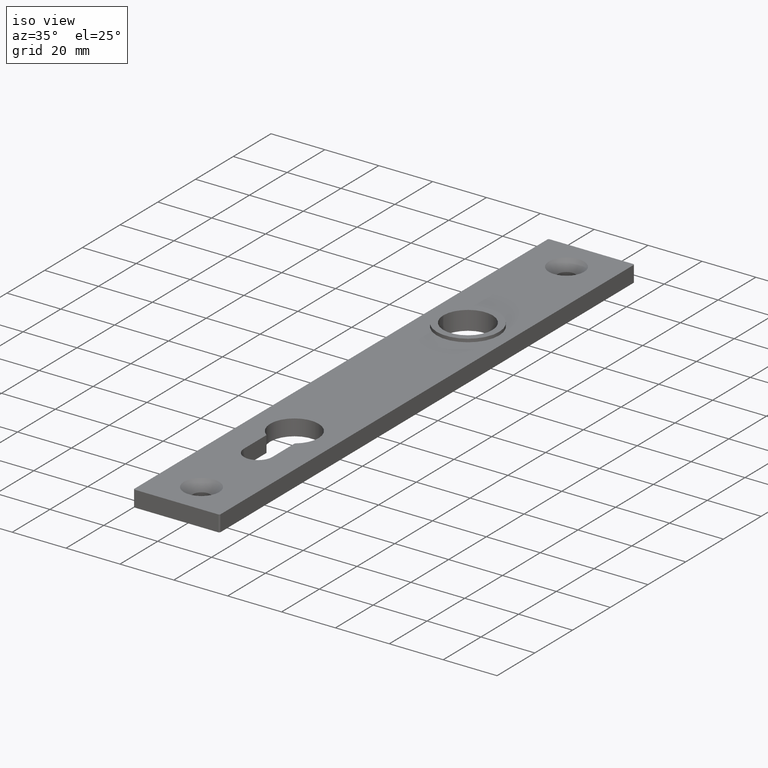
[diagram: clean part render]
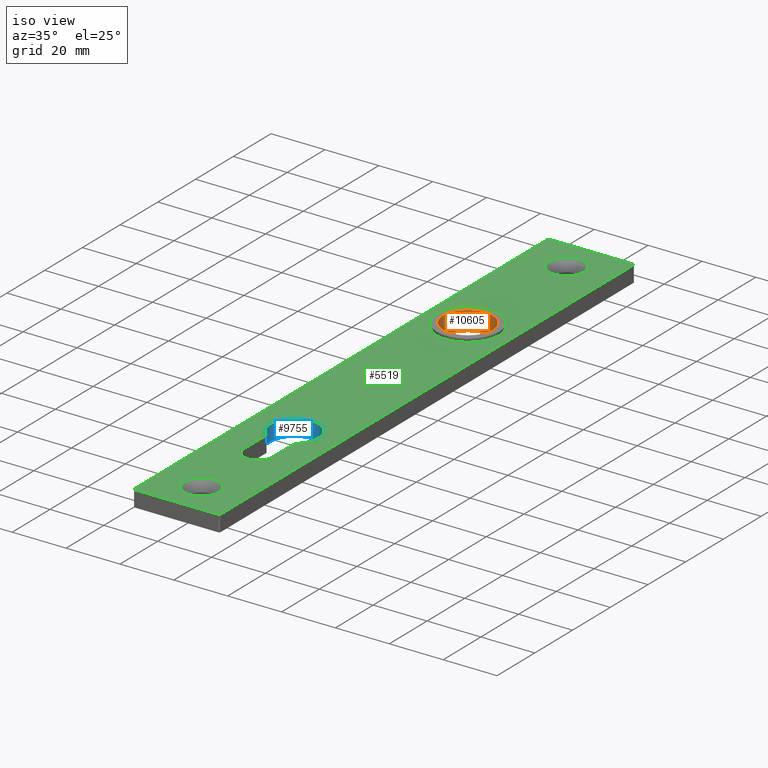
[diagram: same view with three faces highlighted in distinct colors, each labeled with its STEP entity id]
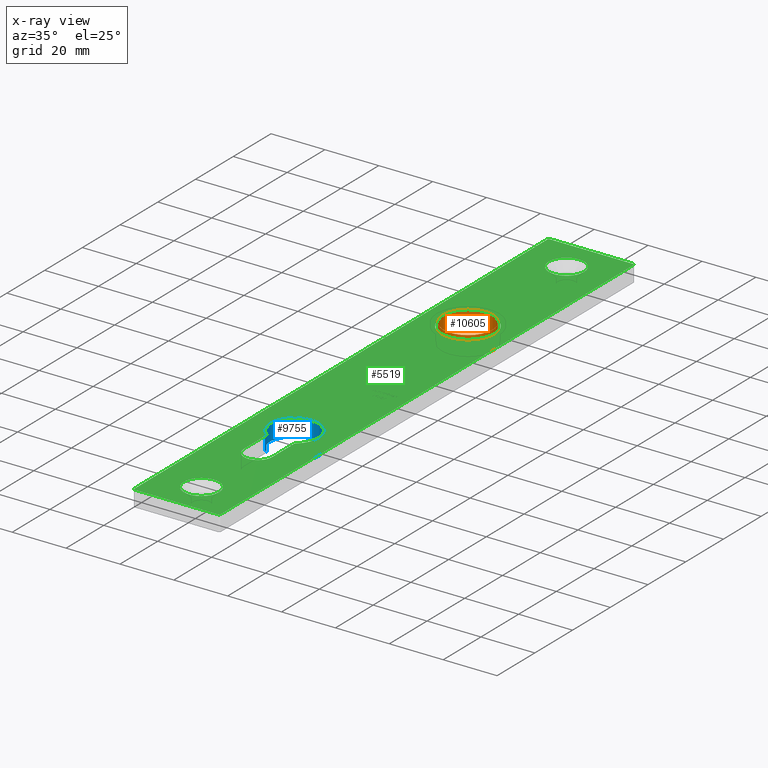
[diagram: x-ray of the same camera — body ghosted, the three highlighted faces saturated]
A machine part, iso view with three faces highlighted in distinct colors.
The next image is the same camera in x-ray (body ghosted, the three faces saturated) — at least one of them is partly hidden behind the body in this view.
Their STEP definitions:

[orange] entity #10605 — the highlighted cylindrical surface (bore or boss wall) has radius 9.15 mm, axis along (-0, -0, -1).
#867 = CARTESIAN_POINT ( 'NONE',  ( 0.0000000000000000000, 0.0000000000000000000, 0.0000000000000000000 ) ) ;
#1224 = EDGE_CURVE ( 'NONE', #5643, #5643, #4533, .T. ) ;
#1470 = EDGE_LOOP ( 'NONE', ( #2022 ) ) ;
#1795 = AXIS2_PLACEMENT_3D ( 'NONE', #5286, #5218, #8835 ) ;
#2022 = ORIENTED_EDGE ( 'NONE', *, *, #1224, .T. ) ;
#2783 = DIRECTION ( 'NONE',  ( -0.0000000000000000000, -0.0000000000000000000, -1.000000000000000000 ) ) ;
#2976 = CARTESIAN_POINT ( 'NONE',  ( -9.150000000000000400, 0.0000000000000000000, 7.000000000000000000 ) ) ;
#3444 = CYLINDRICAL_SURFACE ( 'NONE', #5332, 9.150000000000000400 ) ;
#3684 = DIRECTION ( 'NONE',  ( -1.000000000000000000, 0.0000000000000000000, 0.0000000000000000000 ) ) ;
#3953 = CIRCLE ( 'NONE', #11231, 9.150000000000000400 ) ;
#4533 = CIRCLE ( 'NONE', #1795, 9.150000000000000400 ) ;
#4579 = DIRECTION ( 'NONE',  ( -1.000000000000000000, 0.0000000000000000000, 0.0000000000000000000 ) ) ;
#4677 = CARTESIAN_POINT ( 'NONE',  ( -9.150000000000000400, 0.0000000000000000000, -7.347880794884117800E-017 ) ) ;
#5139 = EDGE_LOOP ( 'NONE', ( #11590 ) ) ;
#5218 = DIRECTION ( 'NONE',  ( -0.0000000000000000000, -0.0000000000000000000, -1.000000000000000000 ) ) ;
#5286 = CARTESIAN_POINT ( 'NONE',  ( 0.0000000000000000000, 0.0000000000000000000, -7.347880794884117800E-017 ) ) ;
#5332 = AXIS2_PLACEMENT_3D ( 'NONE', #867, #5527, #4579 ) ;
#5355 = EDGE_CURVE ( 'NONE', #8887, #8887, #3953, .T. ) ;
#5527 = DIRECTION ( 'NONE',  ( -0.0000000000000000000, -0.0000000000000000000, -1.000000000000000000 ) ) ;
#5643 = VERTEX_POINT ( 'NONE', #4677 ) ;
#8153 = CARTESIAN_POINT ( 'NONE',  ( 0.0000000000000000000, 0.0000000000000000000, 7.000000000000000000 ) ) ;
#8835 = DIRECTION ( 'NONE',  ( -1.000000000000000000, 0.0000000000000000000, 0.0000000000000000000 ) ) ;
#8887 = VERTEX_POINT ( 'NONE', #2976 ) ;
#9610 = FACE_OUTER_BOUND ( 'NONE', #5139, .T. ) ;
#10605 = ADVANCED_FACE ( 'NONE', ( #11500, #9610 ), #3444, .F. ) ;
#11231 = AXIS2_PLACEMENT_3D ( 'NONE', #8153, #2783, #3684 ) ;
#11500 = FACE_OUTER_BOUND ( 'NONE', #1470, .T. ) ;
#11590 = ORIENTED_EDGE ( 'NONE', *, *, #5355, .F. ) ;

[blue] entity #9755 — the highlighted cylindrical surface (edge-blend (fillet) strip) has radius 9 mm, axis along (-0, -0, -1).
#249 = DIRECTION ( 'NONE',  ( -0.0000000000000000000, -0.0000000000000000000, -1.000000000000000000 ) ) ;
#280 = VERTEX_POINT ( 'NONE', #6853 ) ;
#417 = DIRECTION ( 'NONE',  ( -1.000000000000000000, 0.0000000000000000000, 0.0000000000000000000 ) ) ;
#749 = AXIS2_PLACEMENT_3D ( 'NONE', #10041, #2877, #7421 ) ;
#1140 = LINE ( 'NONE', #5275, #2289 ) ;
#1303 = EDGE_CURVE ( 'NONE', #280, #3575, #6517, .T. ) ;
#1318 = CARTESIAN_POINT ( 'NONE',  ( 0.0000000000000000000, -47.50000000000001400, 0.0000000000000000000 ) ) ;
#1473 = VERTEX_POINT ( 'NONE', #11115 ) ;
#1547 = ORIENTED_EDGE ( 'NONE', *, *, #4351, .T. ) ;
#1942 = EDGE_LOOP ( 'NONE', ( #3966, #10872, #10604, #1547 ) ) ;
#2289 = VECTOR ( 'NONE', #3427, 1000.000000000000000 ) ;
#2580 = AXIS2_PLACEMENT_3D ( 'NONE', #5559, #249, #417 ) ;
#2877 = DIRECTION ( 'NONE',  ( 0.0000000000000000000, 0.0000000000000000000, 1.000000000000000000 ) ) ;
#3427 = DIRECTION ( 'NONE',  ( -0.0000000000000000000, -0.0000000000000000000, -1.000000000000000000 ) ) ;
#3575 = VERTEX_POINT ( 'NONE', #8942 ) ;
#3739 = LINE ( 'NONE', #10066, #9498 ) ;
#3936 = DIRECTION ( 'NONE',  ( 0.0000000000000000000, 0.0000000000000000000, 1.000000000000000000 ) ) ;
#3966 = ORIENTED_EDGE ( 'NONE', *, *, #9805, .F. ) ;
#4351 = EDGE_CURVE ( 'NONE', #3575, #1473, #3739, .T. ) ;
#5275 = CARTESIAN_POINT ( 'NONE',  ( 5.250000000000000000, -54.81009575860673500, 6.000000000000000000 ) ) ;
#5559 = CARTESIAN_POINT ( 'NONE',  ( 0.0000000000000000000, -47.50000000000001400, 6.000000000000000000 ) ) ;
#6517 = CIRCLE ( 'NONE', #749, 9.000000000000000000 ) ;
#6853 = CARTESIAN_POINT ( 'NONE',  ( 5.250000000000000000, -54.81009575860673500, 6.000000000000000000 ) ) ;
#7421 = DIRECTION ( 'NONE',  ( 1.000000000000000000, 0.0000000000000000000, 0.0000000000000000000 ) ) ;
#8203 = AXIS2_PLACEMENT_3D ( 'NONE', #1318, #3936, #10235 ) ;
#8749 = CYLINDRICAL_SURFACE ( 'NONE', #2580, 9.000000000000000000 ) ;
#8942 = CARTESIAN_POINT ( 'NONE',  ( -5.250000000000000900, -54.81009575860673500, 6.000000000000000000 ) ) ;
#9498 = VECTOR ( 'NONE', #11070, 1000.000000000000000 ) ;
#9726 = CIRCLE ( 'NONE', #8203, 9.000000000000000000 ) ;
#9755 = ADVANCED_FACE ( 'NONE', ( #11742 ), #8749, .F. ) ;
#9805 = EDGE_CURVE ( 'NONE', #11578, #1473, #9726, .T. ) ;
#10041 = CARTESIAN_POINT ( 'NONE',  ( 0.0000000000000000000, -47.50000000000001400, 6.000000000000000000 ) ) ;
#10066 = CARTESIAN_POINT ( 'NONE',  ( -5.250000000000000900, -54.81009575860673500, 6.000000000000000000 ) ) ;
#10235 = DIRECTION ( 'NONE',  ( 1.000000000000000000, 0.0000000000000000000, 0.0000000000000000000 ) ) ;
#10604 = ORIENTED_EDGE ( 'NONE', *, *, #1303, .T. ) ;
#10616 = CARTESIAN_POINT ( 'NONE',  ( 5.250000000000000000, -54.81009575860673500, 0.0000000000000000000 ) ) ;
#10872 = ORIENTED_EDGE ( 'NONE', *, *, #11551, .F. ) ;
#11070 = DIRECTION ( 'NONE',  ( -0.0000000000000000000, -0.0000000000000000000, -1.000000000000000000 ) ) ;
#11115 = CARTESIAN_POINT ( 'NONE',  ( -5.250000000000000900, -54.81009575860673500, 0.0000000000000000000 ) ) ;
#11551 = EDGE_CURVE ( 'NONE', #280, #11578, #1140, .T. ) ;
#11578 = VERTEX_POINT ( 'NONE', #10616 ) ;
#11742 = FACE_OUTER_BOUND ( 'NONE', #1942, .T. ) ;

[green] entity #5519 — the highlighted planar face has unit normal (0, 0, 1).
#89 = EDGE_LOOP ( 'NONE', ( #10840 ) ) ;
#251 = FACE_BOUND ( 'NONE', #6023, .T. ) ;
#280 = VERTEX_POINT ( 'NONE', #6853 ) ;
#355 = VERTEX_POINT ( 'NONE', #7007 ) ;
#453 = CARTESIAN_POINT ( 'NONE',  ( 15.49999999999999300, 109.4999999999999700, 6.000000000000000000 ) ) ;
#749 = AXIS2_PLACEMENT_3D ( 'NONE', #10041, #2877, #7421 ) ;
#750 = DIRECTION ( 'NONE',  ( -0.0000000000000000000, 0.0000000000000000000, 1.000000000000000000 ) ) ;
#757 = DIRECTION ( 'NONE',  ( -9.462128050782584400E-017, 1.000000000000000000, -0.0000000000000000000 ) ) ;
#786 = CARTESIAN_POINT ( 'NONE',  ( -15.50000000000000700, 109.4999999999999900, 6.000000000000000000 ) ) ;
#871 = DIRECTION ( 'NONE',  ( 1.000000000000000000, 0.0000000000000000000, 0.0000000000000000000 ) ) ;
#1105 = EDGE_CURVE ( 'NONE', #3575, #4487, #1861, .T. ) ;
#1186 = VERTEX_POINT ( 'NONE', #6161 ) ;
#1233 = VERTEX_POINT ( 'NONE', #3474 ) ;
#1243 = ORIENTED_EDGE ( 'NONE', *, *, #9173, .T. ) ;
#1260 = AXIS2_PLACEMENT_3D ( 'NONE', #9453, #11351, #5070 ) ;
#1303 = EDGE_CURVE ( 'NONE', #280, #3575, #6517, .T. ) ;
#1348 = DIRECTION ( 'NONE',  ( 0.0000000000000000000, -0.0000000000000000000, -1.000000000000000000 ) ) ;
#1402 = EDGE_LOOP ( 'NONE', ( #10542, #5560, #5057, #5269 ) ) ;
#1427 = EDGE_CURVE ( 'NONE', #1233, #4442, #10012, .T. ) ;
#1533 = VERTEX_POINT ( 'NONE', #3933 ) ;
#1604 = ORIENTED_EDGE ( 'NONE', *, *, #1427, .T. ) ;
#1718 = DIRECTION ( 'NONE',  ( -0.0000000000000000000, 0.0000000000000000000, 1.000000000000000000 ) ) ;
#1804 = FACE_BOUND ( 'NONE', #1402, .T. ) ;
#1850 = EDGE_CURVE ( 'NONE', #7635, #7635, #6924, .T. ) ;
#1861 = LINE ( 'NONE', #11399, #3570 ) ;
#1896 = VECTOR ( 'NONE', #757, 1000.000000000000000 ) ;
#2060 = CARTESIAN_POINT ( 'NONE',  ( -16.00000000000000700, 109.9999999999999900, 6.000000000000000000 ) ) ;
#2133 = CIRCLE ( 'NONE', #1260, 0.5000000000000004400 ) ;
#2327 = CIRCLE ( 'NONE', #3398, 6.550000000000055800 ) ;
#2415 = ORIENTED_EDGE ( 'NONE', *, *, #8629, .T. ) ;
#2425 = ORIENTED_EDGE ( 'NONE', *, *, #9058, .T. ) ;
#2442 = CARTESIAN_POINT ( 'NONE',  ( -15.50000000000000700, 109.9999999999999900, 6.000000000000000000 ) ) ;
#2487 = EDGE_CURVE ( 'NONE', #355, #1186, #8965, .T. ) ;
#2583 = DIRECTION ( 'NONE',  ( 1.000000000000000000, 0.0000000000000000000, 0.0000000000000000000 ) ) ;
#2621 = DIRECTION ( 'NONE',  ( -0.0000000000000000000, 0.0000000000000000000, 1.000000000000000000 ) ) ;
#2658 = CARTESIAN_POINT ( 'NONE',  ( 15.50000000000001400, -109.4999999999999700, 6.000000000000000000 ) ) ;
#2718 = EDGE_CURVE ( 'NONE', #6219, #6219, #9791, .T. ) ;
#2839 = CIRCLE ( 'NONE', #7154, 0.5000000000000004400 ) ;
#2877 = DIRECTION ( 'NONE',  ( 0.0000000000000000000, 0.0000000000000000000, 1.000000000000000000 ) ) ;
#2932 = CARTESIAN_POINT ( 'NONE',  ( 10.00000000000000700, 44.49999999999998600, 6.000000000000000000 ) ) ;
#2986 = CARTESIAN_POINT ( 'NONE',  ( 0.0000000000000000000, 96.74999999999998600, 6.000000000000000000 ) ) ;
#3111 = CARTESIAN_POINT ( 'NONE',  ( -15.99999999999997900, -109.5000000000000100, 6.000000000000000000 ) ) ;
#3112 = DIRECTION ( 'NONE',  ( 1.000000000000000000, 0.0000000000000000000, 0.0000000000000000000 ) ) ;
#3256 = FACE_BOUND ( 'NONE', #89, .T. ) ;
#3296 = DIRECTION ( 'NONE',  ( 0.0000000000000000000, -0.0000000000000000000, -1.000000000000000000 ) ) ;
#3398 = AXIS2_PLACEMENT_3D ( 'NONE', #11502, #3296, #11464 ) ;
#3474 = CARTESIAN_POINT ( 'NONE',  ( -16.00000000000000700, 109.4999999999999900, 6.000000000000000000 ) ) ;
#3570 = VECTOR ( 'NONE', #5960, 1000.000000000000000 ) ;
#3575 = VERTEX_POINT ( 'NONE', #8942 ) ;
#3836 = VERTEX_POINT ( 'NONE', #4715 ) ;
#3933 = CARTESIAN_POINT ( 'NONE',  ( 15.49999999999999300, 109.9999999999999700, 6.000000000000000000 ) ) ;
#4042 = DIRECTION ( 'NONE',  ( -1.000000000000000000, 4.336808689942017700E-016, -0.0000000000000000000 ) ) ;
#4105 = AXIS2_PLACEMENT_3D ( 'NONE', #8051, #1718, #7975 ) ;
#4155 = EDGE_CURVE ( 'NONE', #8932, #6878, #5544, .T. ) ;
#4442 = VERTEX_POINT ( 'NONE', #3111 ) ;
#4487 = VERTEX_POINT ( 'NONE', #9296 ) ;
#4715 = CARTESIAN_POINT ( 'NONE',  ( 6.550000000000055800, -96.75000000000001400, 6.000000000000000000 ) ) ;
#4752 = EDGE_LOOP ( 'NONE', ( #8789, #1243, #10406, #6370, #4845, #2425, #1604, #6322 ) ) ;
#4757 = CIRCLE ( 'NONE', #7121, 0.5000000000000004400 ) ;
#4845 = ORIENTED_EDGE ( 'NONE', *, *, #11253, .T. ) ;
#5057 = ORIENTED_EDGE ( 'NONE', *, *, #1105, .F. ) ;
#5070 = DIRECTION ( 'NONE',  ( 1.000000000000000000, 0.0000000000000000000, 0.0000000000000000000 ) ) ;
#5089 = VECTOR ( 'NONE', #10985, 1000.000000000000000 ) ;
#5129 = CARTESIAN_POINT ( 'NONE',  ( 15.99999999999999300, 109.4999999999999700, 6.000000000000000000 ) ) ;
#5269 = ORIENTED_EDGE ( 'NONE', *, *, #1303, .F. ) ;
#5322 = AXIS2_PLACEMENT_3D ( 'NONE', #2658, #6254, #8991 ) ;
#5362 = PLANE ( 'NONE',  #4105 ) ;
#5366 = VECTOR ( 'NONE', #4042, 1000.000000000000000 ) ;
#5519 = ADVANCED_FACE ( 'NONE', ( #5898, #3256, #1804, #6894, #251 ), #5362, .T. ) ;
#5544 = LINE ( 'NONE', #10841, #1896 ) ;
#5560 = ORIENTED_EDGE ( 'NONE', *, *, #7127, .F. ) ;
#5581 = VECTOR ( 'NONE', #11592, 1000.000000000000000 ) ;
#5621 = CARTESIAN_POINT ( 'NONE',  ( 6.550000000000055800, 96.74999999999998600, 6.000000000000000000 ) ) ;
#5816 = EDGE_CURVE ( 'NONE', #6878, #1533, #4757, .T. ) ;
#5898 = FACE_BOUND ( 'NONE', #6459, .T. ) ;
#5960 = DIRECTION ( 'NONE',  ( -0.0000000000000000000, -1.000000000000000000, -0.0000000000000000000 ) ) ;
#6023 = EDGE_LOOP ( 'NONE', ( #9900 ) ) ;
#6108 = CARTESIAN_POINT ( 'NONE',  ( 5.250000000000000900, -54.81009575860673500, 6.000000000000000000 ) ) ;
#6161 = CARTESIAN_POINT ( 'NONE',  ( 15.50000000000001400, -109.9999999999999900, 6.000000000000000000 ) ) ;
#6219 = VERTEX_POINT ( 'NONE', #5621 ) ;
#6254 = DIRECTION ( 'NONE',  ( -0.0000000000000000000, 0.0000000000000000000, 1.000000000000000000 ) ) ;
#6322 = ORIENTED_EDGE ( 'NONE', *, *, #8926, .T. ) ;
#6324 = DIRECTION ( 'NONE',  ( 1.000000000000000000, 8.673617379884037400E-016, 0.0000000000000000000 ) ) ;
#6370 = ORIENTED_EDGE ( 'NONE', *, *, #5816, .T. ) ;
#6459 = EDGE_LOOP ( 'NONE', ( #2415 ) ) ;
#6517 = CIRCLE ( 'NONE', #749, 9.000000000000000000 ) ;
#6832 = DIRECTION ( 'NONE',  ( 0.0000000000000000000, 0.0000000000000000000, 1.000000000000000000 ) ) ;
#6853 = CARTESIAN_POINT ( 'NONE',  ( 5.250000000000000000, -54.81009575860673500, 6.000000000000000000 ) ) ;
#6864 = AXIS2_PLACEMENT_3D ( 'NONE', #10801, #10181, #8379 ) ;
#6878 = VERTEX_POINT ( 'NONE', #5129 ) ;
#6894 = FACE_OUTER_BOUND ( 'NONE', #4752, .T. ) ;
#6924 = CIRCLE ( 'NONE', #6864, 10.00000000000000700 ) ;
#7007 = CARTESIAN_POINT ( 'NONE',  ( -15.49999999999997900, -110.0000000000000100, 6.000000000000000000 ) ) ;
#7121 = AXIS2_PLACEMENT_3D ( 'NONE', #453, #750, #871 ) ;
#7127 = EDGE_CURVE ( 'NONE', #4487, #8690, #7170, .T. ) ;
#7154 = AXIS2_PLACEMENT_3D ( 'NONE', #786, #2621, #2583 ) ;
#7170 = CIRCLE ( 'NONE', #11343, 5.250000000000000900 ) ;
#7331 = EDGE_CURVE ( 'NONE', #8690, #280, #9542, .T. ) ;
#7421 = DIRECTION ( 'NONE',  ( 1.000000000000000000, 0.0000000000000000000, 0.0000000000000000000 ) ) ;
#7463 = CARTESIAN_POINT ( 'NONE',  ( -16.00000000000000700, 109.9999999999999900, 6.000000000000000000 ) ) ;
#7635 = VERTEX_POINT ( 'NONE', #2932 ) ;
#7855 = VECTOR ( 'NONE', #6324, 1000.000000000000000 ) ;
#7975 = DIRECTION ( 'NONE',  ( 1.000000000000000000, 0.0000000000000000000, 0.0000000000000000000 ) ) ;
#8051 = CARTESIAN_POINT ( 'NONE',  ( 0.0000000000000000000, 0.0000000000000000000, 6.000000000000000000 ) ) ;
#8379 = DIRECTION ( 'NONE',  ( 1.000000000000000000, 0.0000000000000000000, 0.0000000000000000000 ) ) ;
#8515 = AXIS2_PLACEMENT_3D ( 'NONE', #2986, #1348, #3112 ) ;
#8623 = LINE ( 'NONE', #2060, #5366 ) ;
#8629 = EDGE_CURVE ( 'NONE', #3836, #3836, #2327, .T. ) ;
#8661 = CARTESIAN_POINT ( 'NONE',  ( 16.00000000000001400, -109.4999999999999700, 6.000000000000000000 ) ) ;
#8690 = VERTEX_POINT ( 'NONE', #10509 ) ;
#8789 = ORIENTED_EDGE ( 'NONE', *, *, #2487, .T. ) ;
#8926 = EDGE_CURVE ( 'NONE', #4442, #355, #2133, .T. ) ;
#8932 = VERTEX_POINT ( 'NONE', #8661 ) ;
#8942 = CARTESIAN_POINT ( 'NONE',  ( -5.250000000000000900, -54.81009575860673500, 6.000000000000000000 ) ) ;
#8965 = LINE ( 'NONE', #10712, #7855 ) ;
#8991 = DIRECTION ( 'NONE',  ( 1.000000000000000000, 0.0000000000000000000, 0.0000000000000000000 ) ) ;
#9058 = EDGE_CURVE ( 'NONE', #9400, #1233, #2839, .T. ) ;
#9173 = EDGE_CURVE ( 'NONE', #1186, #8932, #9576, .T. ) ;
#9296 = CARTESIAN_POINT ( 'NONE',  ( -5.250000000000000900, -66.75000000000000000, 6.000000000000000000 ) ) ;
#9400 = VERTEX_POINT ( 'NONE', #2442 ) ;
#9453 = CARTESIAN_POINT ( 'NONE',  ( -15.49999999999997900, -109.5000000000000100, 6.000000000000000000 ) ) ;
#9458 = CARTESIAN_POINT ( 'NONE',  ( 0.0000000000000000000, -66.75000000000001400, 6.000000000000000000 ) ) ;
#9542 = LINE ( 'NONE', #6108, #5581 ) ;
#9576 = CIRCLE ( 'NONE', #5322, 0.5000000000000004400 ) ;
#9791 = CIRCLE ( 'NONE', #8515, 6.550000000000055800 ) ;
#9900 = ORIENTED_EDGE ( 'NONE', *, *, #1850, .F. ) ;
#10012 = LINE ( 'NONE', #7463, #5089 ) ;
#10041 = CARTESIAN_POINT ( 'NONE',  ( 0.0000000000000000000, -47.50000000000001400, 6.000000000000000000 ) ) ;
#10181 = DIRECTION ( 'NONE',  ( 0.0000000000000000000, 0.0000000000000000000, 1.000000000000000000 ) ) ;
#10406 = ORIENTED_EDGE ( 'NONE', *, *, #4155, .T. ) ;
#10509 = CARTESIAN_POINT ( 'NONE',  ( 5.250000000000000900, -66.75000000000000000, 6.000000000000000000 ) ) ;
#10542 = ORIENTED_EDGE ( 'NONE', *, *, #7331, .F. ) ;
#10712 = CARTESIAN_POINT ( 'NONE',  ( -15.99999999999997900, -110.0000000000000100, 6.000000000000000000 ) ) ;
#10801 = CARTESIAN_POINT ( 'NONE',  ( 0.0000000000000000000, 44.49999999999998600, 6.000000000000000000 ) ) ;
#10840 = ORIENTED_EDGE ( 'NONE', *, *, #2718, .T. ) ;
#10841 = CARTESIAN_POINT ( 'NONE',  ( 15.99999999999999300, 109.9999999999999700, 6.000000000000000000 ) ) ;
#10985 = DIRECTION ( 'NONE',  ( 1.261617073437678000E-016, -1.000000000000000000, 0.0000000000000000000 ) ) ;
#11253 = EDGE_CURVE ( 'NONE', #1533, #9400, #8623, .T. ) ;
#11343 = AXIS2_PLACEMENT_3D ( 'NONE', #9458, #6832, #11392 ) ;
#11351 = DIRECTION ( 'NONE',  ( -0.0000000000000000000, 0.0000000000000000000, 1.000000000000000000 ) ) ;
#11392 = DIRECTION ( 'NONE',  ( 1.000000000000000000, 0.0000000000000000000, 0.0000000000000000000 ) ) ;
#11399 = CARTESIAN_POINT ( 'NONE',  ( -5.250000000000000900, -66.75000000000000000, 6.000000000000000000 ) ) ;
#11464 = DIRECTION ( 'NONE',  ( 1.000000000000000000, 0.0000000000000000000, 0.0000000000000000000 ) ) ;
#11502 = CARTESIAN_POINT ( 'NONE',  ( 0.0000000000000000000, -96.75000000000001400, 6.000000000000000000 ) ) ;
#11592 = DIRECTION ( 'NONE',  ( -0.0000000000000000000, 1.000000000000000000, -0.0000000000000000000 ) ) ;